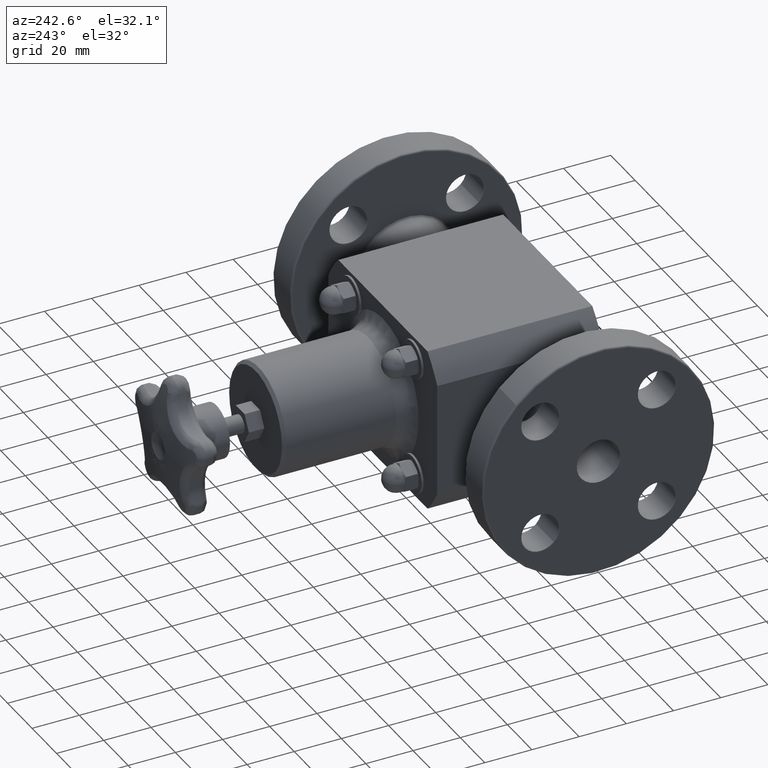
[diagram: clean part render]
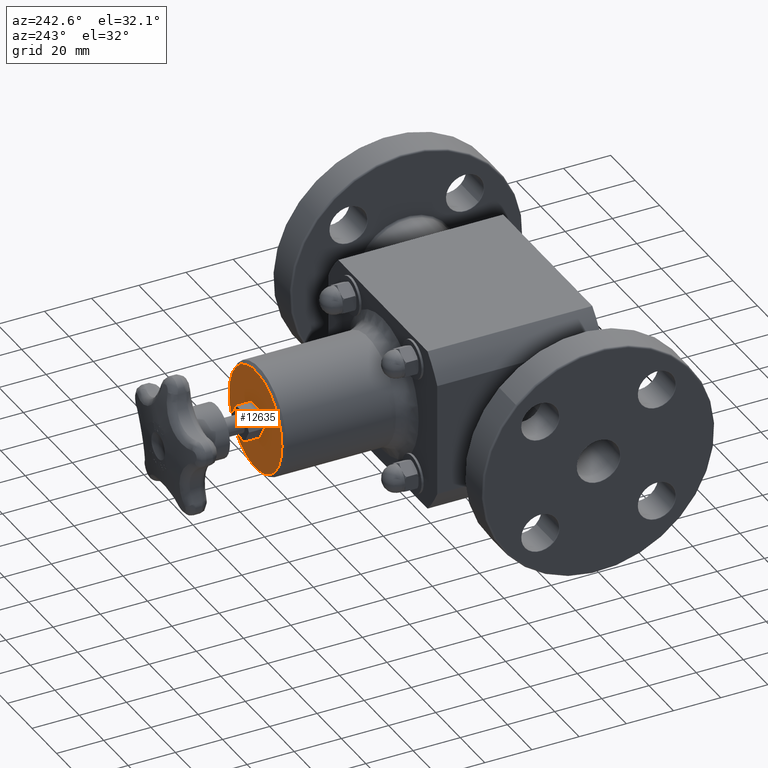
[diagram: same view with one face highlighted and labeled with its STEP entity id]
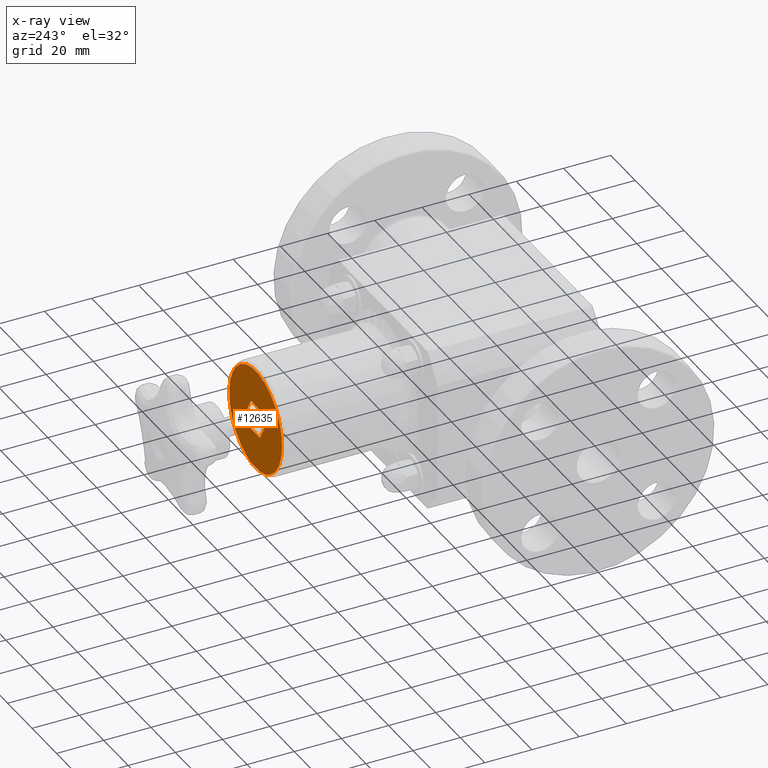
[diagram: x-ray of the same camera — body ghosted, the highlighted face saturated]
A machine part, auxiliary view. The second image highlights one B-rep face of the part: STEP entity #12635.
The next image is the same camera in x-ray: the body ghosted, the highlighted face saturated — about 0% of this face is hidden behind the body in this view.
In plain terms, the highlighted planar face has unit normal (0, 1, 0).
Its self-contained STEP definition (entity closure, byte-faithful):
#9473=CARTESIAN_POINT('',(-0.282324281633727,4.875000000000000,5.821667E-017));
#9474=VERTEX_POINT('',#9473);
#9481=CARTESIAN_POINT('',(-0.141162140816863,4.875000000000000,0.244500000000000));
#9482=VERTEX_POINT('',#9481);
#9483=CARTESIAN_POINT('',(-0.141162140816863,4.875000000000000,0.244500000000000));
#9484=DIRECTION('',(-0.500000000000000,0.0,-0.866025403784439));
#9485=VECTOR('',#9484,0.282324281633727);
#9486=LINE('',#9483,#9485);
#9487=EDGE_CURVE('',#9482,#9474,#9486,.T.);
#9504=CARTESIAN_POINT('',(-0.141162140816863,4.875000000000000,-0.244500000000000));
#9505=VERTEX_POINT('',#9504);
#9512=CARTESIAN_POINT('',(-0.282324281633727,4.875000000000000,5.551115E-017));
#9513=DIRECTION('',(0.500000000000001,0.0,-0.866025403784438));
#9514=VECTOR('',#9513,0.282324281633727);
#9515=LINE('',#9512,#9514);
#9516=EDGE_CURVE('',#9474,#9505,#9515,.T.);
#9528=CARTESIAN_POINT('',(0.141162140816864,4.875000000000000,-0.244500000000000));
#9529=VERTEX_POINT('',#9528);
#9536=CARTESIAN_POINT('',(-0.141162140816863,4.875000000000000,-0.244500000000000));
#9537=DIRECTION('',(1.0,0.0,0.0));
#9538=VECTOR('',#9537,0.282324281633727);
#9539=LINE('',#9536,#9538);
#9540=EDGE_CURVE('',#9505,#9529,#9539,.T.);
#9552=CARTESIAN_POINT('',(0.282324281633727,4.875000000000000,3.780390E-016));
#9553=VERTEX_POINT('',#9552);
#9560=CARTESIAN_POINT('',(0.141162140816864,4.875000000000000,-0.244500000000000));
#9561=DIRECTION('',(0.500000000000000,0.0,0.866025403784439));
#9562=VECTOR('',#9561,0.282324281633727);
#9563=LINE('',#9560,#9562);
#9564=EDGE_CURVE('',#9529,#9553,#9563,.T.);
#9576=CARTESIAN_POINT('',(0.141162140816864,4.875000000000000,0.244500000000000));
#9577=VERTEX_POINT('',#9576);
#9584=CARTESIAN_POINT('',(0.282324281633727,4.875000000000000,3.816392E-016));
#9585=DIRECTION('',(-0.500000000000000,0.0,0.866025403784439));
#9586=VECTOR('',#9585,0.282324281633727);
#9587=LINE('',#9584,#9586);
#9588=EDGE_CURVE('',#9553,#9577,#9587,.T.);
#9601=CARTESIAN_POINT('',(0.141162140816864,4.875000000000000,0.244500000000000));
#9602=DIRECTION('',(-1.0,0.0,0.0));
#9603=VECTOR('',#9602,0.282324281633727);
#9604=LINE('',#9601,#9603);
#9605=EDGE_CURVE('',#9577,#9482,#9604,.T.);
#12611=CARTESIAN_POINT('',(0.518750000000000,4.875000000000000,4.015036E-016));
#12612=DIRECTION('',(0.0,1.0,0.0));
#12613=DIRECTION('',(0.0,0.0,1.0));
#12614=AXIS2_PLACEMENT_3D('',#12611,#12612,#12613);
#12615=PLANE('',#12614);
#12616=CARTESIAN_POINT('',(0.850000000000000,4.875000000000000,4.345980E-016));
#12617=VERTEX_POINT('',#12616);
#12618=CARTESIAN_POINT('',(5.245148E-016,4.875000000000000,3.496765E-016));
#12619=DIRECTION('',(0.0,-1.0,0.0));
#12620=DIRECTION('',(1.0,0.0,0.0));
#12621=AXIS2_PLACEMENT_3D('',#12618,#12619,#12620);
#12622=CIRCLE('',#12621,0.849999999999999);
#12623=EDGE_CURVE('',#12617,#12617,#12622,.T.);
#12624=ORIENTED_EDGE('',*,*,#12623,.F.);
#12625=EDGE_LOOP('',(#12624));
#12626=FACE_OUTER_BOUND('',#12625,.T.);
#12627=ORIENTED_EDGE('',*,*,#9487,.T.);
#12628=ORIENTED_EDGE('',*,*,#9516,.T.);
#12629=ORIENTED_EDGE('',*,*,#9540,.T.);
#12630=ORIENTED_EDGE('',*,*,#9564,.T.);
#12631=ORIENTED_EDGE('',*,*,#9588,.T.);
#12632=ORIENTED_EDGE('',*,*,#9605,.T.);
#12633=EDGE_LOOP('',(#12627,#12628,#12629,#12630,#12631,#12632));
#12634=FACE_BOUND('',#12633,.T.);
#12635=ADVANCED_FACE('',(#12626,#12634),#12615,.T.);